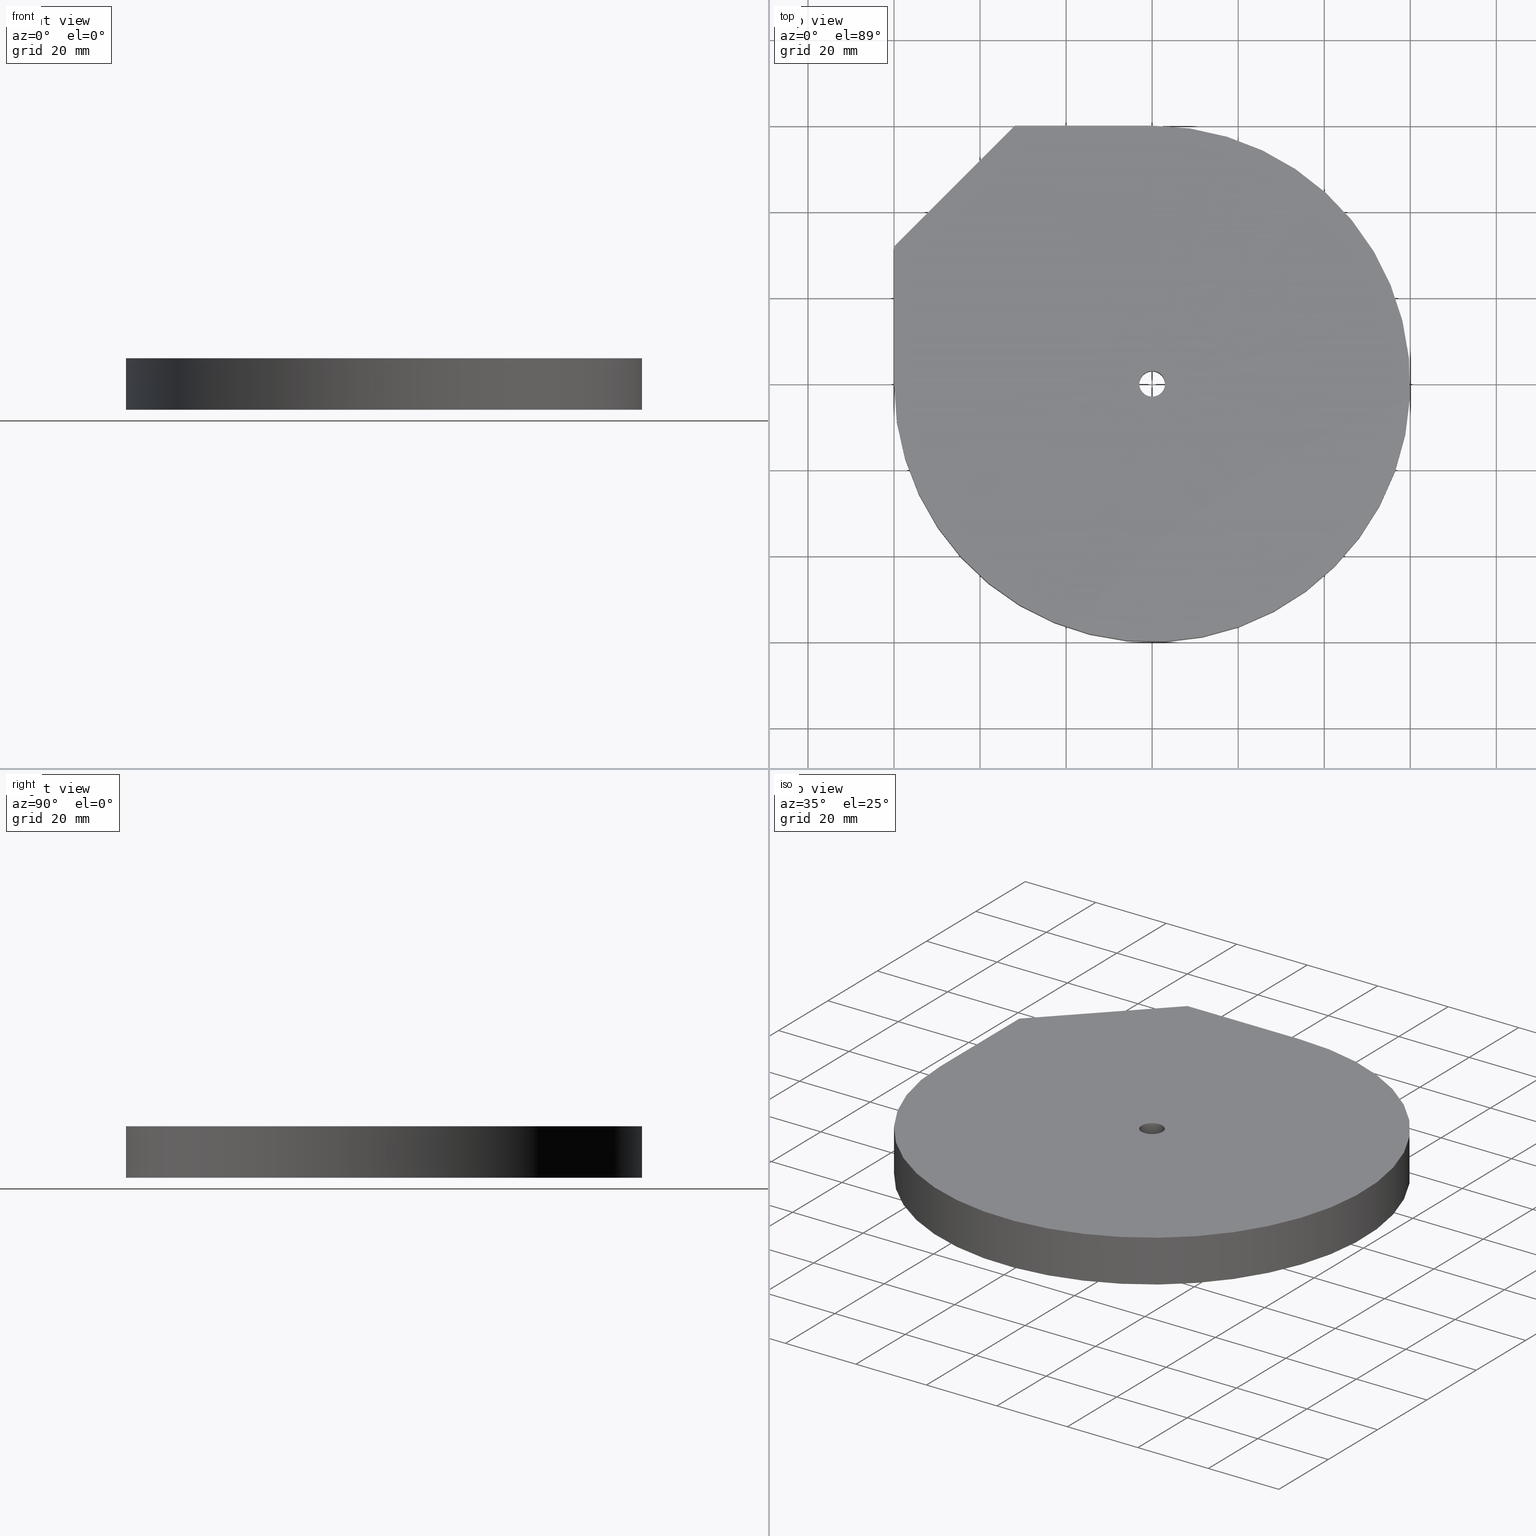
[diagram: canonical four-view strip — front | top / right | iso, engineering-drawing reading convention]
A machine part, canonical four-view strip (front | top / right | iso — engineering-drawing reading convention). The complete STEP part file that produces these views, byte-faithful:
ISO-10303-21;
HEADER;
FILE_DESCRIPTION (( 'STEP AP214' ),
    '1' );
FILE_NAME ('TubeClampDisk.STEP',
    '2015-06-11T08:30:35',
    ( '' ),
    ( '' ),
    'SwSTEP 2.0',
    'SolidWorks 2014',
    '' );
FILE_SCHEMA (( 'AUTOMOTIVE_DESIGN' ));
ENDSEC;

DATA;
#1 = EDGE_CURVE ( 'NONE', #111, #144, #155, .T. ) ;
#2 = CARTESIAN_POINT ( 'NONE',  ( 0.0000000000000000000, 60.00000000000000000, 90.85281374238590500 ) ) ;
#3 = EDGE_CURVE ( 'NONE', #238, #111, #130, .T. ) ;
#4 = EDGE_CURVE ( 'NONE', #173, #238, #158, .T. ) ;
#5 = EDGE_CURVE ( 'NONE', #220, #259, #152, .T. ) ;
#6 = VECTOR ( 'NONE', #136, 1000.000000000000000 ) ;
#7 = CARTESIAN_POINT ( 'NONE',  ( 0.0000000000000000000, 0.0000000000000000000, -6.000000000000000000 ) ) ;
#8 = EDGE_CURVE ( 'NONE', #221, #143, #104, .T. ) ;
#9 = PLANE ( 'NONE',  #193 ) ;
#10 = CARTESIAN_POINT ( 'NONE',  ( 0.0000000000000000000, 0.0000000000000000000, 6.000000000000000000 ) ) ;
#11 = EDGE_CURVE ( 'NONE', #221, #186, #146, .T. ) ;
#12 = ADVANCED_FACE ( 'NONE', ( #278, #157 ), #57, .T. ) ;
#13 = EDGE_CURVE ( 'NONE', #186, #125, #184, .T. ) ;
#14 =( NAMED_UNIT ( * ) SI_UNIT ( $, .STERADIAN. ) SOLID_ANGLE_UNIT ( ) );
#15 = AXIS2_PLACEMENT_3D ( 'NONE', #247, #242, #239 ) ;
#16 = EDGE_CURVE ( 'NONE', #125, #143, #190, .T. ) ;
#17 = ADVANCED_BREP_SHAPE_REPRESENTATION ( 'TubeClampDisk', ( #122, #142 ), #170 ) ;
#18 = CARTESIAN_POINT ( 'NONE',  ( -60.00000000000000000, 0.0000000000000000000, 90.85281374238590500 ) ) ;
#19 = EDGE_CURVE ( 'NONE', #33, #35, #192, .T. ) ;
#20 = CARTESIAN_POINT ( 'NONE',  ( 0.0000000000000000000, 0.0000000000000000000, 6.000000000000000000 ) ) ;
#21 =( NAMED_UNIT ( * ) PLANE_ANGLE_UNIT ( ) SI_UNIT ( $, .RADIAN. ) );
#22 = EDGE_CURVE ( 'NONE', #173, #221, #254, .T. ) ;
#23 = DIRECTION ( 'NONE',  ( 1.000000000000000000, -9.346370909219268600E-015, -0.0000000000000000000 ) ) ;
#24 = ADVANCED_FACE ( 'NONE', ( #189 ), #28, .F. ) ;
#25 = EDGE_CURVE ( 'NONE', #144, #143, #257, .T. ) ;
#26 =( LENGTH_UNIT ( ) NAMED_UNIT ( * ) SI_UNIT ( .MILLI., .METRE. ) );
#27 = DIRECTION ( 'NONE',  ( 0.0000000000000000000, 0.0000000000000000000, -1.000000000000000000 ) ) ;
#28 = CYLINDRICAL_SURFACE ( 'NONE', #243, 3.000000000000000400 ) ;
#29 = EDGE_CURVE ( 'NONE', #238, #186, #244, .T. ) ;
#30 = DIRECTION ( 'NONE',  ( -0.0000000000000000000, 1.000000000000000000, -0.0000000000000000000 ) ) ;
#31 = EDGE_CURVE ( 'NONE', #111, #125, #92, .T. ) ;
#32 = DIRECTION ( 'NONE',  ( 0.0000000000000000000, 0.0000000000000000000, 1.000000000000000000 ) ) ;
#33 = VERTEX_POINT ( 'NONE', #110 ) ;
#34 = ORIENTED_EDGE ( 'NONE', *, *, #3, .F. ) ;
#35 = VERTEX_POINT ( 'NONE', #215 ) ;
#36 = DIRECTION ( 'NONE',  ( 0.7071067811865507900, 0.7071067811865442400, -0.0000000000000000000 ) ) ;
#37 = CARTESIAN_POINT ( 'NONE',  ( 0.0000000000000000000, 0.0000000000000000000, 6.000000000000000000 ) ) ;
#38 = SURFACE_STYLE_USAGE ( .BOTH. , #40 ) ;
#39 = CARTESIAN_POINT ( 'NONE',  ( -31.92388155425075200, 60.00000000000029800, -6.000000000000000000 ) ) ;
#40 = SURFACE_SIDE_STYLE ('',( #176 ) ) ;
#41 = DIRECTION ( 'NONE',  ( 0.0000000000000000000, 0.0000000000000000000, -1.000000000000000000 ) ) ;
#42 = CARTESIAN_POINT ( 'NONE',  ( 0.0000000000000000000, 60.00000000000000000, -6.000000000000000000 ) ) ;
#43 = CIRCLE ( 'NONE', #226, 3.000000000000000400 ) ;
#44 = EDGE_LOOP ( 'NONE', ( #217, #206, #138, #252 ) ) ;
#45 = CARTESIAN_POINT ( 'NONE',  ( -31.92388155425075200, 60.00000000000029800, 6.000000000000005300 ) ) ;
#46 = VECTOR ( 'NONE', #55, 1000.000000000000000 ) ;
#47 = DIRECTION ( 'NONE',  ( 0.0000000000000000000, 1.000000000000000000, 0.0000000000000000000 ) ) ;
#48 = UNCERTAINTY_MEASURE_WITH_UNIT (LENGTH_MEASURE( 1.000000000000000100E-005 ), #96, 'distance_accuracy_value', 'NONE');
#49 = DIRECTION ( 'NONE',  ( 1.000000000000000000, 0.0000000000000000000, -0.0000000000000000000 ) ) ;
#50 = DIRECTION ( 'NONE',  ( 0.0000000000000000000, 0.0000000000000000000, 1.000000000000000000 ) ) ;
#51 = PLANE ( 'NONE',  #15 ) ;
#52 = CARTESIAN_POINT ( 'NONE',  ( -31.92388155425075200, 60.00000000000029800, 6.000000000000005300 ) ) ;
#53 = DIRECTION ( 'NONE',  ( -1.000000000000000000, 9.346370909219268600E-015, 0.0000000000000000000 ) ) ;
#54 = FILL_AREA_STYLE_COLOUR ( '', #211 ) ;
#55 = DIRECTION ( 'NONE',  ( 0.0000000000000000000, 0.0000000000000000000, -1.000000000000000000 ) ) ;
#56 = CARTESIAN_POINT ( 'NONE',  ( -60.00000000000000000, 31.92388155425130600, 6.000000000000005300 ) ) ;
#57 = PLANE ( 'NONE',  #256 ) ;
#58 = DIRECTION ( 'NONE',  ( 1.000000000000000000, 0.0000000000000000000, 0.0000000000000000000 ) ) ;
#59 = DIRECTION ( 'NONE',  ( 0.0000000000000000000, 0.0000000000000000000, 1.000000000000000000 ) ) ;
#60 = FILL_AREA_STYLE ('',( #54 ) ) ;
#61 = CARTESIAN_POINT ( 'NONE',  ( 0.0000000000000000000, 0.0000000000000000000, -6.000000000000000000 ) ) ;
#62 = APPLICATION_PROTOCOL_DEFINITION ( 'draft international standard', 'automotive_design', 1998, #65 ) ;
#63 = ADVANCED_FACE ( 'NONE', ( #183 ), #207, .T. ) ;
#64 = CARTESIAN_POINT ( 'NONE',  ( 0.0000000000000000000, 0.0000000000000000000, 6.000000000000000000 ) ) ;
#65 = APPLICATION_CONTEXT ( 'automotive_design' ) ;
#66 = PRODUCT_CONTEXT ( 'NONE', #87, 'mechanical' ) ;
#67 = DIRECTION ( 'NONE',  ( 1.000000000000000000, 0.0000000000000000000, 0.0000000000000000000 ) ) ;
#68 = DIRECTION ( 'NONE',  ( 0.0000000000000000000, 0.0000000000000000000, 1.000000000000000000 ) ) ;
#69 =( NAMED_UNIT ( * ) SI_UNIT ( $, .STERADIAN. ) SOLID_ANGLE_UNIT ( ) );
#70 =( NAMED_UNIT ( * ) PLANE_ANGLE_UNIT ( ) SI_UNIT ( $, .RADIAN. ) );
#71 = ORIENTED_EDGE ( 'NONE', *, *, #13, .T. ) ;
#72 = CARTESIAN_POINT ( 'NONE',  ( -60.00000000000000000, 31.92388155425130600, -6.000000000000000000 ) ) ;
#73 = DIRECTION ( 'NONE',  ( 1.000000000000000000, 0.0000000000000000000, 0.0000000000000000000 ) ) ;
#74 =( LENGTH_UNIT ( ) NAMED_UNIT ( * ) SI_UNIT ( .MILLI., .METRE. ) );
#75 = ORIENTED_EDGE ( 'NONE', *, *, #25, .F. ) ;
#76 = SURFACE_STYLE_USAGE ( .BOTH. , #85 ) ;
#77 = CARTESIAN_POINT ( 'NONE',  ( -31.92388155425075200, 60.00000000000029800, -6.000000000000000000 ) ) ;
#78 = DIRECTION ( 'NONE',  ( 0.0000000000000000000, 0.0000000000000000000, 1.000000000000000000 ) ) ;
#79 = DIRECTION ( 'NONE',  ( -0.0000000000000000000, -0.0000000000000000000, -1.000000000000000000 ) ) ;
#80 = VECTOR ( 'NONE', #188, 1000.000000000000100 ) ;
#81 = ADVANCED_FACE ( 'NONE', ( #185 ), #167, .T. ) ;
#82 = DIRECTION ( 'NONE',  ( -0.0000000000000000000, -0.0000000000000000000, -1.000000000000000000 ) ) ;
#83 = DIRECTION ( 'NONE',  ( 9.346370909219268600E-015, 1.000000000000000000, 0.0000000000000000000 ) ) ;
#84 = UNCERTAINTY_MEASURE_WITH_UNIT (LENGTH_MEASURE( 1.000000000000000100E-005 ), #26, 'distance_accuracy_value', 'NONE');
#85 = SURFACE_SIDE_STYLE ('',( #115 ) ) ;
#86 = FILL_AREA_STYLE ('',( #177 ) ) ;
#87 = APPLICATION_CONTEXT ( 'automotive_design' ) ;
#88 = PRODUCT_DEFINITION_CONTEXT ( 'detailed design', #65, 'design' ) ;
#89 = PRODUCT_RELATED_PRODUCT_CATEGORY ( 'part', '', ( #187 ) ) ;
#90 = APPLICATION_PROTOCOL_DEFINITION ( 'draft international standard', 'automotive_design', 1998, #87 ) ;
#91 = ADVANCED_FACE ( 'NONE', ( #101 ), #181, .F. ) ;
#92 = LINE ( 'NONE', #233, #172 ) ;
#93 = DIRECTION ( 'NONE',  ( -1.000000000000000000, 0.0000000000000000000, 0.0000000000000000000 ) ) ;
#94 =( NAMED_UNIT ( * ) SI_UNIT ( $, .STERADIAN. ) SOLID_ANGLE_UNIT ( ) );
#95 =( NAMED_UNIT ( * ) PLANE_ANGLE_UNIT ( ) SI_UNIT ( $, .RADIAN. ) );
#96 =( LENGTH_UNIT ( ) NAMED_UNIT ( * ) SI_UNIT ( .MILLI., .METRE. ) );
#97 = DIRECTION ( 'NONE',  ( 1.000000000000000000, 0.0000000000000000000, 0.0000000000000000000 ) ) ;
#98 = DIRECTION ( 'NONE',  ( 0.0000000000000000000, 0.0000000000000000000, 1.000000000000000000 ) ) ;
#99 = EDGE_LOOP ( 'NONE', ( #154, #127, #204, #120 ) ) ;
#100 = CARTESIAN_POINT ( 'NONE',  ( 0.0000000000000000000, 0.0000000000000000000, -6.000000000000000000 ) ) ;
#101 = FACE_OUTER_BOUND ( 'NONE', #44, .T. ) ;
#102 = CARTESIAN_POINT ( 'NONE',  ( 0.0000000000000000000, 0.0000000000000000000, 0.0000000000000000000 ) ) ;
#103 = ORIENTED_EDGE ( 'NONE', *, *, #208, .F. ) ;
#104 = CIRCLE ( 'NONE', #267, 60.00000000000000000 ) ;
#105 = EDGE_LOOP ( 'NONE', ( #103, #266 ) ) ;
#106 = VECTOR ( 'NONE', #30, 1000.000000000000000 ) ;
#107 = ORIENTED_EDGE ( 'NONE', *, *, #8, .T. ) ;
#108 = SHAPE_DEFINITION_REPRESENTATION ( #156, #17 ) ;
#109 = DIRECTION ( 'NONE',  ( -1.000000000000000000, 0.0000000000000000000, 0.0000000000000000000 ) ) ;
#110 = CARTESIAN_POINT ( 'NONE',  ( 3.000000000000000400, 3.673940397442060400E-016, -6.000000000000000000 ) ) ;
#111 = VERTEX_POINT ( 'NONE', #45 ) ;
#112 = PRESENTATION_STYLE_ASSIGNMENT (( #76 ) ) ;
#113 = DIRECTION ( 'NONE',  ( -1.000000000000000000, 0.0000000000000000000, 0.0000000000000000000 ) ) ;
#114 = CIRCLE ( 'NONE', #175, 60.00000000000000000 ) ;
#115 = SURFACE_STYLE_FILL_AREA ( #86 ) ;
#116 = COLOUR_RGB ( '',1.000000000000000000, 1.000000000000000000, 1.000000000000000000 ) ;
#117 = DIRECTION ( 'NONE',  ( -0.0000000000000000000, 0.0000000000000000000, 1.000000000000000000 ) ) ;
#118 = DIRECTION ( 'NONE',  ( 1.000000000000000000, 0.0000000000000000000, 0.0000000000000000000 ) ) ;
#119 = DIRECTION ( 'NONE',  ( 0.0000000000000000000, 0.0000000000000000000, 1.000000000000000000 ) ) ;
#120 = ORIENTED_EDGE ( 'NONE', *, *, #16, .F. ) ;
#121 = ORIENTED_EDGE ( 'NONE', *, *, #1, .F. ) ;
#122 = MANIFOLD_SOLID_BREP ( 'Boss-Extrude2', #229 ) ;
#123 = ORIENTED_EDGE ( 'NONE', *, *, #16, .T. ) ;
#124 = ORIENTED_EDGE ( 'NONE', *, *, #31, .T. ) ;
#125 = VERTEX_POINT ( 'NONE', #77 ) ;
#126 = CARTESIAN_POINT ( 'NONE',  ( 0.0000000000000000000, 60.00000000000000000, 6.000000000000005300 ) ) ;
#127 = ORIENTED_EDGE ( 'NONE', *, *, #1, .T. ) ;
#128 = CARTESIAN_POINT ( 'NONE',  ( 0.0000000000000000000, 0.0000000000000000000, 6.000000000000000000 ) ) ;
#129 = DIRECTION ( 'NONE',  ( -1.000000000000000000, 0.0000000000000000000, -0.0000000000000000000 ) ) ;
#130 = LINE ( 'NONE', #52, #80 ) ;
#131 = DIRECTION ( 'NONE',  ( 1.000000000000000000, -9.346370909219268600E-015, 0.0000000000000000000 ) ) ;
#132 = CARTESIAN_POINT ( 'NONE',  ( -3.000000000000000400, 0.0000000000000000000, 6.000000000000000000 ) ) ;
#133 = CARTESIAN_POINT ( 'NONE',  ( -60.00000000000000000, 31.92388155425130600, 90.85281374238590500 ) ) ;
#134 = PRODUCT_DEFINITION_FORMATION_WITH_SPECIFIED_SOURCE ( 'ANY', '', #187, .NOT_KNOWN. ) ;
#135 = ADVANCED_FACE ( 'NONE', ( #262 ), #9, .T. ) ;
#136 = DIRECTION ( 'NONE',  ( -0.0000000000000000000, -0.0000000000000000000, -1.000000000000000000 ) ) ;
#137 = CARTESIAN_POINT ( 'NONE',  ( -60.00000000000000000, 31.92388155425130600, 6.000000000000005300 ) ) ;
#138 = ORIENTED_EDGE ( 'NONE', *, *, #272, .T. ) ;
#139 = EDGE_LOOP ( 'NONE', ( #234, #271, #265, #200 ) ) ;
#140 = DIRECTION ( 'NONE',  ( 1.000000000000000000, 0.0000000000000000000, 0.0000000000000000000 ) ) ;
#141 = PRODUCT_DEFINITION ( 'UNKNOWN', '', #134, #88 ) ;
#142 = AXIS2_PLACEMENT_3D ( 'NONE', #102, #68, #67 ) ;
#143 = VERTEX_POINT ( 'NONE', #42 ) ;
#144 = VERTEX_POINT ( 'NONE', #249 ) ;
#145 = EDGE_LOOP ( 'NONE', ( #251, #253, #240, #232 ) ) ;
#146 = LINE ( 'NONE', #72, #106 ) ;
#147 = EDGE_LOOP ( 'NONE', ( #276, #264 ) ) ;
#148 =( GEOMETRIC_REPRESENTATION_CONTEXT ( 3 ) GLOBAL_UNCERTAINTY_ASSIGNED_CONTEXT ( ( #248 ) ) GLOBAL_UNIT_ASSIGNED_CONTEXT ( ( #74, #70, #69 ) ) REPRESENTATION_CONTEXT ( 'NONE', 'WORKASPACE' ) );
#149 = MECHANICAL_DESIGN_GEOMETRIC_PRESENTATION_REPRESENTATION (  '', ( #153 ), #148 ) ;
#150 = PRESENTATION_LAYER_ASSIGNMENT (  '', '', ( #153 ) ) ;
#151 = VECTOR ( 'NONE', #131, 1000.000000000000000 ) ;
#152 = CIRCLE ( 'NONE', #270, 3.000000000000000400 ) ;
#153 = STYLED_ITEM ( 'NONE', ( #112 ), #17 ) ;
#154 = ORIENTED_EDGE ( 'NONE', *, *, #31, .F. ) ;
#155 = LINE ( 'NONE', #126, #151 ) ;
#156 = PRODUCT_DEFINITION_SHAPE ( 'NONE', 'NONE',  #141 ) ;
#157 = FACE_BOUND ( 'NONE', #105, .T. ) ;
#158 = LINE ( 'NONE', #56, #241 ) ;
#159 = ORIENTED_EDGE ( 'NONE', *, *, #11, .T. ) ;
#160 = DIRECTION ( 'NONE',  ( 0.0000000000000000000, 0.0000000000000000000, 1.000000000000000000 ) ) ;
#161 = CARTESIAN_POINT ( 'NONE',  ( 0.0000000000000000000, 0.0000000000000000000, 6.000000000000000000 ) ) ;
#162 = CARTESIAN_POINT ( 'NONE',  ( 3.000000000000000400, 3.673940397442060400E-016, 6.000000000000000000 ) ) ;
#163 = CARTESIAN_POINT ( 'NONE',  ( -60.00000000000000000, 0.0000000000000000000, -6.000000000000000000 ) ) ;
#164 = LINE ( 'NONE', #228, #182 ) ;
#165 = ADVANCED_FACE ( 'NONE', ( #179, #174 ), #51, .F. ) ;
#166 = CARTESIAN_POINT ( 'NONE',  ( -3.000000000000000400, 0.0000000000000000000, 6.000000000000000000 ) ) ;
#167 = CYLINDRICAL_SURFACE ( 'NONE', #225, 60.00000000000000000 ) ;
#168 = LINE ( 'NONE', #132, #6 ) ;
#169 = PRESENTATION_STYLE_ASSIGNMENT (( #38 ) ) ;
#170 =( GEOMETRIC_REPRESENTATION_CONTEXT ( 3 ) GLOBAL_UNCERTAINTY_ASSIGNED_CONTEXT ( ( #48 ) ) GLOBAL_UNIT_ASSIGNED_CONTEXT ( ( #96, #95, #94 ) ) REPRESENTATION_CONTEXT ( 'NONE', 'WORKASPACE' ) );
#171 = AXIS2_PLACEMENT_3D ( 'NONE', #100, #98, #97 ) ;
#172 = VECTOR ( 'NONE', #27, 1000.000000000000000 ) ;
#173 = VERTEX_POINT ( 'NONE', #269 ) ;
#174 = FACE_BOUND ( 'NONE', #147, .T. ) ;
#175 = AXIS2_PLACEMENT_3D ( 'NONE', #128, #119, #118 ) ;
#176 = SURFACE_STYLE_FILL_AREA ( #60 ) ;
#177 = FILL_AREA_STYLE_COLOUR ( '', #116 ) ;
#178 = AXIS2_PLACEMENT_3D ( 'NONE', #218, #197, #180 ) ;
#179 = FACE_OUTER_BOUND ( 'NONE', #216, .T. ) ;
#180 = DIRECTION ( 'NONE',  ( -0.7071067811865507900, -0.7071067811865442400, 0.0000000000000000000 ) ) ;
#181 = CYLINDRICAL_SURFACE ( 'NONE', #224, 3.000000000000000400 ) ;
#182 = VECTOR ( 'NONE', #235, 1000.000000000000000 ) ;
#183 = FACE_OUTER_BOUND ( 'NONE', #139, .T. ) ;
#184 = LINE ( 'NONE', #39, #219 ) ;
#185 = FACE_OUTER_BOUND ( 'NONE', #205, .T. ) ;
#186 = VERTEX_POINT ( 'NONE', #237 ) ;
#187 = PRODUCT ( 'TubeClampDisk', 'TubeClampDisk', '', ( #66 ) ) ;
#188 = DIRECTION ( 'NONE',  ( 0.7071067811865507900, 0.7071067811865442400, -0.0000000000000000000 ) ) ;
#189 = FACE_OUTER_BOUND ( 'NONE', #145, .T. ) ;
#190 = LINE ( 'NONE', #227, #194 ) ;
#191 = ORIENTED_EDGE ( 'NONE', *, *, #3, .T. ) ;
#192 = CIRCLE ( 'NONE', #258, 3.000000000000000400 ) ;
#193 = AXIS2_PLACEMENT_3D ( 'NONE', #2, #83, #53 ) ;
#194 = VECTOR ( 'NONE', #23, 1000.000000000000000 ) ;
#195 = VECTOR ( 'NONE', #273, 1000.000000000000000 ) ;
#196 = ORIENTED_EDGE ( 'NONE', *, *, #260, .T. ) ;
#197 = DIRECTION ( 'NONE',  ( -0.7071067811865442400, 0.7071067811865507900, 0.0000000000000000000 ) ) ;
#198 = EDGE_LOOP ( 'NONE', ( #213, #191, #124, #212 ) ) ;
#199 = CARTESIAN_POINT ( 'NONE',  ( 0.0000000000000000000, 0.0000000000000000000, 6.000000000000000000 ) ) ;
#200 = ORIENTED_EDGE ( 'NONE', *, *, #11, .F. ) ;
#201 = EDGE_CURVE ( 'NONE', #220, #33, #164, .T. ) ;
#202 = PLANE ( 'NONE',  #178 ) ;
#203 = ADVANCED_FACE ( 'NONE', ( #261 ), #202, .T. ) ;
#204 = ORIENTED_EDGE ( 'NONE', *, *, #25, .T. ) ;
#205 = EDGE_LOOP ( 'NONE', ( #231, #223, #107, #75 ) ) ;
#206 = ORIENTED_EDGE ( 'NONE', *, *, #5, .T. ) ;
#207 = PLANE ( 'NONE',  #236 ) ;
#208 = EDGE_CURVE ( 'NONE', #259, #220, #43, .T. ) ;
#209 =( GEOMETRIC_REPRESENTATION_CONTEXT ( 3 ) GLOBAL_UNCERTAINTY_ASSIGNED_CONTEXT ( ( #84 ) ) GLOBAL_UNIT_ASSIGNED_CONTEXT ( ( #26, #21, #14 ) ) REPRESENTATION_CONTEXT ( 'NONE', 'WORKASPACE' ) );
#210 = CARTESIAN_POINT ( 'NONE',  ( -60.00000000000000000, 31.92388155425130600, 90.85281374238590500 ) ) ;
#211 = COLOUR_RGB ( '',1.000000000000000000, 1.000000000000000000, 1.000000000000000000 ) ;
#212 = ORIENTED_EDGE ( 'NONE', *, *, #13, .F. ) ;
#213 = ORIENTED_EDGE ( 'NONE', *, *, #29, .F. ) ;
#214 = ORIENTED_EDGE ( 'NONE', *, *, #4, .F. ) ;
#215 = CARTESIAN_POINT ( 'NONE',  ( -3.000000000000000400, 0.0000000000000000000, -6.000000000000000000 ) ) ;
#216 = EDGE_LOOP ( 'NONE', ( #263, #159, #71, #123 ) ) ;
#217 = ORIENTED_EDGE ( 'NONE', *, *, #201, .F. ) ;
#218 = CARTESIAN_POINT ( 'NONE',  ( -31.92388155425075200, 60.00000000000029800, 90.85281374238590500 ) ) ;
#219 = VECTOR ( 'NONE', #36, 1000.000000000000100 ) ;
#220 = VERTEX_POINT ( 'NONE', #162 ) ;
#221 = VERTEX_POINT ( 'NONE', #163 ) ;
#222 = MECHANICAL_DESIGN_GEOMETRIC_PRESENTATION_REPRESENTATION (  '', ( #250 ), #209 ) ;
#223 = ORIENTED_EDGE ( 'NONE', *, *, #22, .T. ) ;
#224 = AXIS2_PLACEMENT_3D ( 'NONE', #64, #79, #109 ) ;
#225 = AXIS2_PLACEMENT_3D ( 'NONE', #199, #82, #93 ) ;
#226 = AXIS2_PLACEMENT_3D ( 'NONE', #161, #160, #140 ) ;
#227 = CARTESIAN_POINT ( 'NONE',  ( 0.0000000000000000000, 60.00000000000000000, -6.000000000000000000 ) ) ;
#228 = CARTESIAN_POINT ( 'NONE',  ( 3.000000000000000400, 3.673940397442060400E-016, 6.000000000000000000 ) ) ;
#229 = CLOSED_SHELL ( 'NONE', ( #24, #12, #165, #81, #91, #63, #203, #135 ) ) ;
#230 = PRESENTATION_LAYER_ASSIGNMENT (  '', '', ( #250 ) ) ;
#231 = ORIENTED_EDGE ( 'NONE', *, *, #260, .F. ) ;
#232 = ORIENTED_EDGE ( 'NONE', *, *, #272, .F. ) ;
#233 = CARTESIAN_POINT ( 'NONE',  ( -31.92388155425075200, 60.00000000000029800, 90.85281374238590500 ) ) ;
#234 = ORIENTED_EDGE ( 'NONE', *, *, #22, .F. ) ;
#235 = DIRECTION ( 'NONE',  ( -0.0000000000000000000, -0.0000000000000000000, -1.000000000000000000 ) ) ;
#236 = AXIS2_PLACEMENT_3D ( 'NONE', #133, #129, #117 ) ;
#237 = CARTESIAN_POINT ( 'NONE',  ( -60.00000000000000000, 31.92388155425130600, -6.000000000000000000 ) ) ;
#238 = VERTEX_POINT ( 'NONE', #137 ) ;
#239 = DIRECTION ( 'NONE',  ( 1.000000000000000000, 0.0000000000000000000, -0.0000000000000000000 ) ) ;
#240 = ORIENTED_EDGE ( 'NONE', *, *, #274, .F. ) ;
#241 = VECTOR ( 'NONE', #47, 1000.000000000000000 ) ;
#242 = DIRECTION ( 'NONE',  ( 0.0000000000000000000, 0.0000000000000000000, 1.000000000000000000 ) ) ;
#243 = AXIS2_PLACEMENT_3D ( 'NONE', #20, #268, #113 ) ;
#244 = LINE ( 'NONE', #210, #46 ) ;
#245 = EDGE_LOOP ( 'NONE', ( #196, #121, #34, #214 ) ) ;
#246 = CIRCLE ( 'NONE', #171, 3.000000000000000400 ) ;
#247 = CARTESIAN_POINT ( 'NONE',  ( 0.0000000000000000000, 0.0000000000000000000, -6.000000000000000000 ) ) ;
#248 = UNCERTAINTY_MEASURE_WITH_UNIT (LENGTH_MEASURE( 1.000000000000000100E-005 ), #74, 'distance_accuracy_value', 'NONE');
#249 = CARTESIAN_POINT ( 'NONE',  ( 5.607822545531560500E-013, 60.00000000000000000, 6.000000000000000000 ) ) ;
#250 = STYLED_ITEM ( 'NONE', ( #169 ), #122 ) ;
#251 = ORIENTED_EDGE ( 'NONE', *, *, #208, .T. ) ;
#252 = ORIENTED_EDGE ( 'NONE', *, *, #19, .F. ) ;
#253 = ORIENTED_EDGE ( 'NONE', *, *, #201, .T. ) ;
#254 = LINE ( 'NONE', #18, #255 ) ;
#255 = VECTOR ( 'NONE', #41, 1000.000000000000000 ) ;
#256 = AXIS2_PLACEMENT_3D ( 'NONE', #37, #50, #49 ) ;
#257 = LINE ( 'NONE', #275, #195 ) ;
#258 = AXIS2_PLACEMENT_3D ( 'NONE', #7, #32, #277 ) ;
#259 = VERTEX_POINT ( 'NONE', #166 ) ;
#260 = EDGE_CURVE ( 'NONE', #173, #144, #114, .T. ) ;
#261 = FACE_OUTER_BOUND ( 'NONE', #198, .T. ) ;
#262 = FACE_OUTER_BOUND ( 'NONE', #99, .T. ) ;
#263 = ORIENTED_EDGE ( 'NONE', *, *, #8, .F. ) ;
#264 = ORIENTED_EDGE ( 'NONE', *, *, #19, .T. ) ;
#265 = ORIENTED_EDGE ( 'NONE', *, *, #29, .T. ) ;
#266 = ORIENTED_EDGE ( 'NONE', *, *, #5, .F. ) ;
#267 = AXIS2_PLACEMENT_3D ( 'NONE', #61, #59, #58 ) ;
#268 = DIRECTION ( 'NONE',  ( -0.0000000000000000000, -0.0000000000000000000, -1.000000000000000000 ) ) ;
#269 = CARTESIAN_POINT ( 'NONE',  ( -60.00000000000000000, 0.0000000000000000000, 6.000000000000000000 ) ) ;
#270 = AXIS2_PLACEMENT_3D ( 'NONE', #10, #78, #73 ) ;
#271 = ORIENTED_EDGE ( 'NONE', *, *, #4, .T. ) ;
#272 = EDGE_CURVE ( 'NONE', #259, #35, #168, .T. ) ;
#273 = DIRECTION ( 'NONE',  ( 0.0000000000000000000, 0.0000000000000000000, -1.000000000000000000 ) ) ;
#274 = EDGE_CURVE ( 'NONE', #35, #33, #246, .T. ) ;
#275 = CARTESIAN_POINT ( 'NONE',  ( 0.0000000000000000000, 60.00000000000000000, 90.85281374238590500 ) ) ;
#276 = ORIENTED_EDGE ( 'NONE', *, *, #274, .T. ) ;
#277 = DIRECTION ( 'NONE',  ( 1.000000000000000000, 0.0000000000000000000, 0.0000000000000000000 ) ) ;
#278 = FACE_OUTER_BOUND ( 'NONE', #245, .T. ) ;
ENDSEC;
END-ISO-10303-21;
